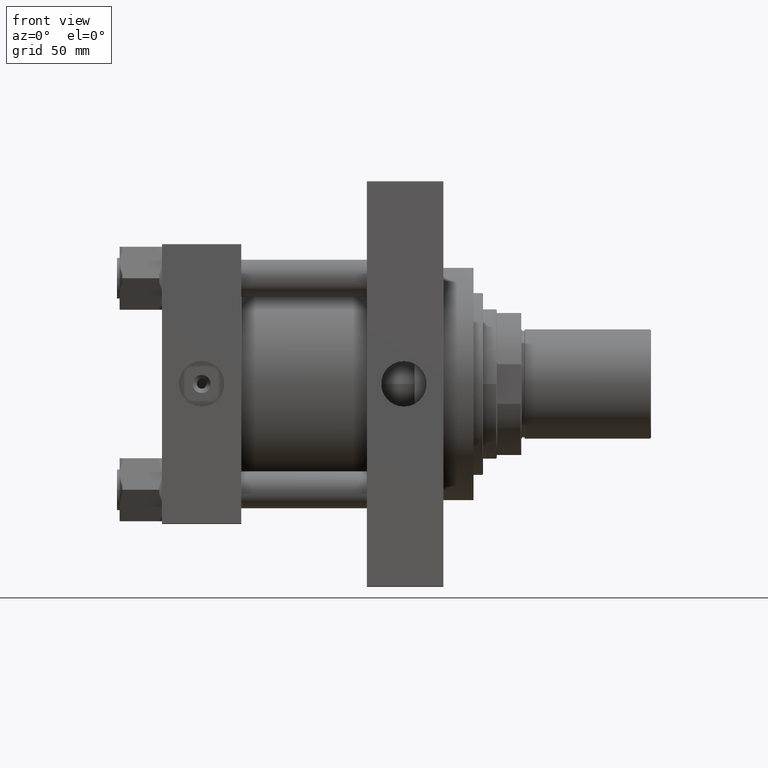
[diagram: clean part render]
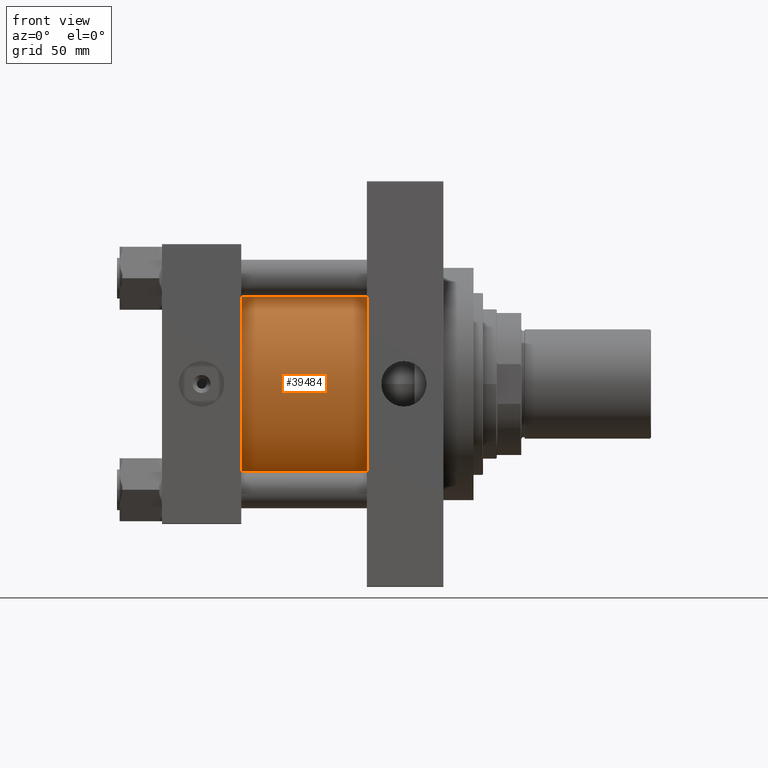
[diagram: same view with one face highlighted and labeled with its STEP entity id]
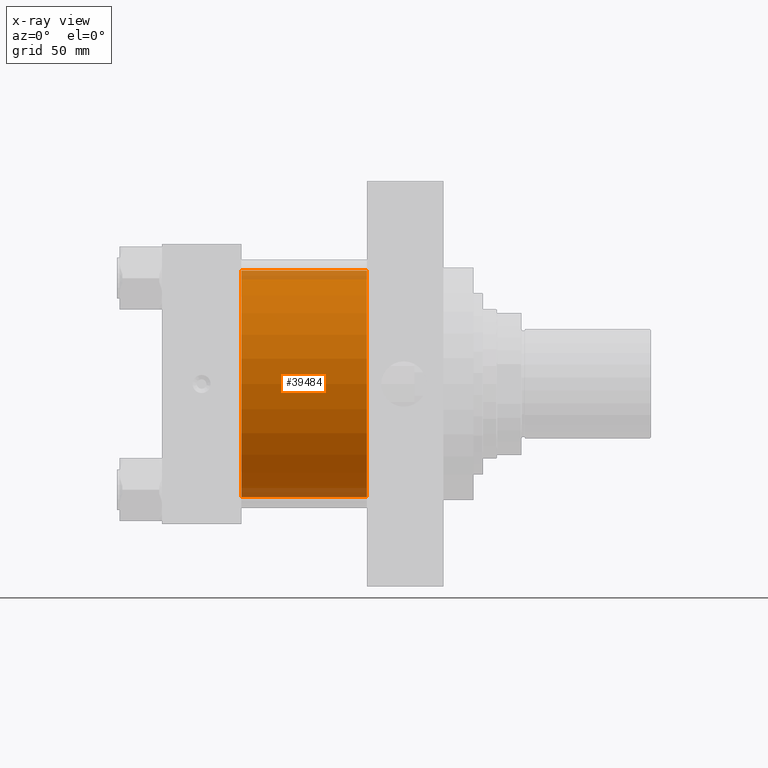
[diagram: x-ray of the same camera — body ghosted, the highlighted face saturated]
A machine part, front view. The second image highlights one B-rep face of the part: STEP entity #39484.
The next image is the same camera in x-ray: the body ghosted, the highlighted face saturated — about 8% of this face is hidden behind the body in this view.
In plain terms, the highlighted cylindrical surface (partial cylindrical patch) has radius 83 mm, axis along (-1, -0, -0).
Its self-contained STEP definition (entity closure, byte-faithful):
#438 = AXIS2_PLACEMENT_3D ( 'NONE', #1329, #39774, #16594 ) ;
#1329 = CARTESIAN_POINT ( 'NONE',  ( 150.0000000000000000, -2.602085213965210642E-15, 0.000000000000000000 ) ) ;
#1439 = DIRECTION ( 'NONE',  ( 0.000000000000000000, 0.000000000000000000, 1.000000000000000000 ) ) ;
#1722 = CARTESIAN_POINT ( 'NONE',  ( 150.0000000000000000, -2.602085213965210642E-15, 83.00000000000000000 ) ) ;
#3176 = CIRCLE ( 'NONE', #41360, 83.00000000000000000 ) ;
#5495 = DIRECTION ( 'NONE',  ( -1.000000000000000000, -0.000000000000000000, -0.000000000000000000 ) ) ;
#5985 = FACE_OUTER_BOUND ( 'NONE', #14668, .T. ) ;
#9777 = CARTESIAN_POINT ( 'NONE',  ( 150.0000000000000000, 7.562483218957820855E-15, -83.00000000000000000 ) ) ;
#10093 = DIRECTION ( 'NONE',  ( -1.000000000000000000, -0.000000000000000000, -0.000000000000000000 ) ) ;
#10568 = CYLINDRICAL_SURFACE ( 'NONE', #34717, 83.00000000000000000 ) ;
#12949 = EDGE_CURVE ( 'NONE', #34214, #39914, #14586, .T. ) ;
#14586 = LINE ( 'NONE', #9777, #18162 ) ;
#14668 = EDGE_LOOP ( 'NONE', ( #47818, #46745, #44860, #25631 ) ) ;
#16594 = DIRECTION ( 'NONE',  ( 0.000000000000000000, 0.000000000000000000, -1.000000000000000000 ) ) ;
#18162 = VECTOR ( 'NONE', #25525, 1000.000000000000000 ) ;
#21017 = DIRECTION ( 'NONE',  ( 0.000000000000000000, 0.000000000000000000, 1.000000000000000000 ) ) ;
#21766 = DIRECTION ( 'NONE',  ( 1.000000000000000000, -0.000000000000000000, -0.000000000000000000 ) ) ;
#22701 = VERTEX_POINT ( 'NONE', #34713 ) ;
#24009 = CIRCLE ( 'NONE', #438, 83.00000000000000000 ) ;
#24582 = CARTESIAN_POINT ( 'NONE',  ( 57.99999999999999289, -2.602085213965210642E-15, 0.000000000000000000 ) ) ;
#25525 = DIRECTION ( 'NONE',  ( -1.000000000000000000, -0.000000000000000000, -0.000000000000000000 ) ) ;
#25631 = ORIENTED_EDGE ( 'NONE', *, *, #47651, .T. ) ;
#25786 = EDGE_CURVE ( 'NONE', #44917, #22701, #40411, .T. ) ;
#26029 = CARTESIAN_POINT ( 'NONE',  ( 57.99999999999999289, 7.562483218957820855E-15, -83.00000000000000000 ) ) ;
#26084 = CARTESIAN_POINT ( 'NONE',  ( 150.0000000000000000, -2.602085213965210642E-15, 0.000000000000000000 ) ) ;
#28199 = CARTESIAN_POINT ( 'NONE',  ( 150.0000000000000000, -2.602085213965210642E-15, 83.00000000000000000 ) ) ;
#32622 = CARTESIAN_POINT ( 'NONE',  ( 150.0000000000000000, 7.562483218957820855E-15, -83.00000000000000000 ) ) ;
#34214 = VERTEX_POINT ( 'NONE', #32622 ) ;
#34713 = CARTESIAN_POINT ( 'NONE',  ( 57.99999999999999289, -2.602085213965210642E-15, 83.00000000000000000 ) ) ;
#34717 = AXIS2_PLACEMENT_3D ( 'NONE', #26084, #5495, #21017 ) ;
#36132 = EDGE_CURVE ( 'NONE', #44917, #34214, #24009, .T. ) ;
#39484 = ADVANCED_FACE ( 'NONE', ( #5985 ), #10568, .T. ) ;
#39774 = DIRECTION ( 'NONE',  ( 1.000000000000000000, 0.000000000000000000, 0.000000000000000000 ) ) ;
#39914 = VERTEX_POINT ( 'NONE', #26029 ) ;
#40411 = LINE ( 'NONE', #1722, #40449 ) ;
#40449 = VECTOR ( 'NONE', #10093, 1000.000000000000000 ) ;
#41360 = AXIS2_PLACEMENT_3D ( 'NONE', #24582, #21766, #1439 ) ;
#44860 = ORIENTED_EDGE ( 'NONE', *, *, #25786, .T. ) ;
#44917 = VERTEX_POINT ( 'NONE', #28199 ) ;
#46745 = ORIENTED_EDGE ( 'NONE', *, *, #36132, .F. ) ;
#47651 = EDGE_CURVE ( 'NONE', #22701, #39914, #3176, .T. ) ;
#47818 = ORIENTED_EDGE ( 'NONE', *, *, #12949, .F. ) ;